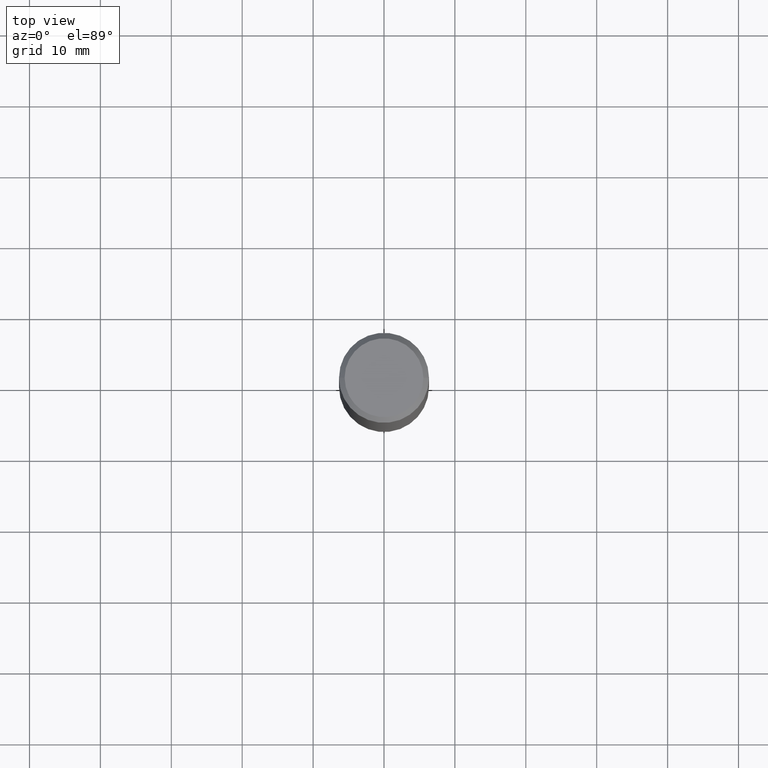
[diagram: clean part render]
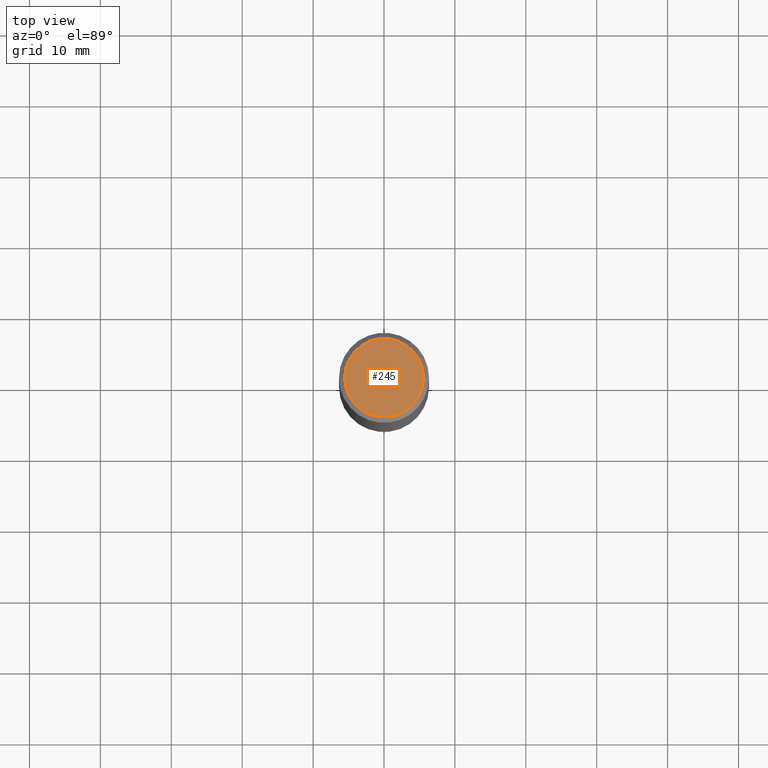
[diagram: same view with one face highlighted and labeled with its STEP entity id]
A machine part, top view. The second image highlights one B-rep face of the part: STEP entity #245.
In plain terms, the highlighted planar face has unit normal (0, -0, -1).
Its self-contained STEP definition (entity closure, byte-faithful):
#6 = CARTESIAN_POINT ( 'NONE',  ( 4.486072164429078595E-45, -6.404922118488073332E-31, -1.834442603840539745E-16 ) ) ;
#35 = EDGE_LOOP ( 'NONE', ( #73, #71 ) ) ;
#44 = FACE_OUTER_BOUND ( 'NONE', #35, .T. ) ;
#46 = CARTESIAN_POINT ( 'NONE',  ( -0.2187500000000001943, 1.582077481663294407E-15, -3.668885207681187466E-16 ) ) ;
#49 = CIRCLE ( 'NONE', #263, 0.2187500000000001943 ) ;
#71 = ORIENTED_EDGE ( 'NONE', *, *, #147, .T. ) ;
#73 = ORIENTED_EDGE ( 'NONE', *, *, #340, .T. ) ;
#81 = AXIS2_PLACEMENT_3D ( 'NONE', #187, #459, #354 ) ;
#147 = EDGE_CURVE ( 'NONE', #349, #434, #49, .T. ) ;
#170 = DIRECTION ( 'NONE',  ( 1.000000000000000000, -6.982962677686266711E-15, 4.880466792705917960E-29 ) ) ;
#174 = AXIS2_PLACEMENT_3D ( 'NONE', #6, #291, #424 ) ;
#187 = CARTESIAN_POINT ( 'NONE',  ( 8.972144328858154701E-45, -1.280984423697614491E-30, -3.668885207681078998E-16 ) ) ;
#194 = PLANE ( 'NONE',  #174 ) ;
#245 = ADVANCED_FACE ( 'NONE', ( #44 ), #194, .F. ) ;
#263 = AXIS2_PLACEMENT_3D ( 'NONE', #282, #415, #170 ) ;
#282 = CARTESIAN_POINT ( 'NONE',  ( 8.972144328858154701E-45, -1.280984423697614491E-30, -3.668885207681078998E-16 ) ) ;
#290 = CIRCLE ( 'NONE', #81, 0.2187500000000001943 ) ;
#291 = DIRECTION ( 'NONE',  ( 2.438088387897960049E-29, -3.491481338843145188E-15, -1.000000000000000000 ) ) ;
#321 = CARTESIAN_POINT ( 'NONE',  ( 0.2187500000000001943, -1.662483614147128246E-15, -3.668885207680967078E-16 ) ) ;
#340 = EDGE_CURVE ( 'NONE', #434, #349, #290, .T. ) ;
#349 = VERTEX_POINT ( 'NONE', #321 ) ;
#354 = DIRECTION ( 'NONE',  ( 1.000000000000000000, -6.982962677686266711E-15, 4.880466792705917960E-29 ) ) ;
#415 = DIRECTION ( 'NONE',  ( -2.445468806185136597E-29, 3.491481338843145583E-15, 1.000000000000000000 ) ) ;
#424 = DIRECTION ( 'NONE',  ( -1.000000000000000000, 6.982962677686265922E-15, -4.876176775795935793E-29 ) ) ;
#434 = VERTEX_POINT ( 'NONE', #46 ) ;
#459 = DIRECTION ( 'NONE',  ( -2.445468806185136597E-29, 3.491481338843145583E-15, 1.000000000000000000 ) ) ;